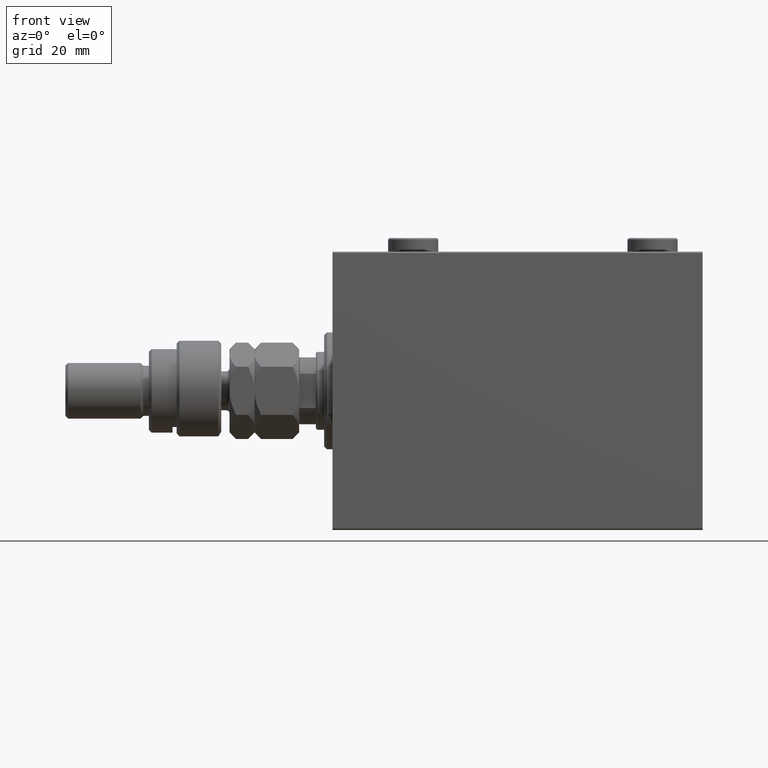
[diagram: clean part render]
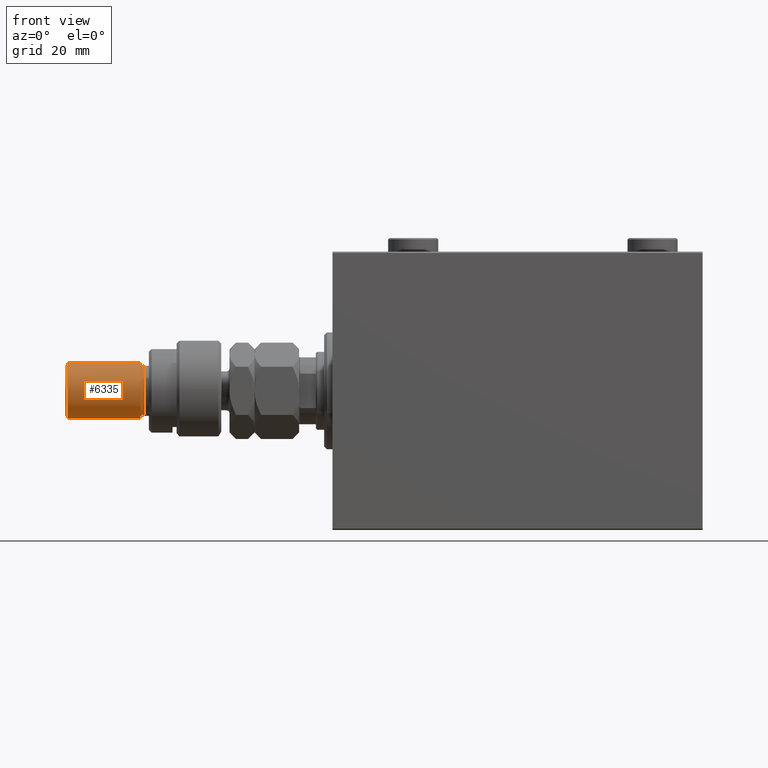
[diagram: same view with one face highlighted and labeled with its STEP entity id]
A machine part, front view. The second image highlights one B-rep face of the part: STEP entity #6335.
In plain terms, the highlighted cylindrical surface (edge-blend (fillet) strip) has radius 10 mm, axis along (1, -0, -0).
Its self-contained STEP definition (entity closure, byte-faithful):
#2035 = DIRECTION ( 'NONE',  ( -0.000000000000000000, -0.000000000000000000, -1.000000000000000000 ) ) ;
#6237 = VERTEX_POINT ( 'NONE', #22292 ) ;
#6335 = ADVANCED_FACE ( 'NONE', ( #38337 ), #24444, .T. ) ;
#10984 = CIRCLE ( 'NONE', #31192, 10.00000000000000000 ) ;
#14657 = EDGE_LOOP ( 'NONE', ( #21568, #43747, #32508, #21585 ) ) ;
#15089 = EDGE_CURVE ( 'NONE', #25404, #6237, #10984, .T. ) ;
#16908 = DIRECTION ( 'NONE',  ( -1.000000000000000000, 0.000000000000000000, 0.000000000000000000 ) ) ;
#19206 = CARTESIAN_POINT ( 'NONE',  ( -10.00000000000000000, 0.000000000000000000, 29.00000000000000711 ) ) ;
#21568 = ORIENTED_EDGE ( 'NONE', *, *, #35191, .F. ) ;
#21585 = ORIENTED_EDGE ( 'NONE', *, *, #15089, .T. ) ;
#22292 = CARTESIAN_POINT ( 'NONE',  ( 10.00000000000000000, 1.224646799147353256E-15, 29.00000000000000711 ) ) ;
#24444 = CYLINDRICAL_SURFACE ( 'NONE', #34782, 10.00000000000000000 ) ;
#25357 = CARTESIAN_POINT ( 'NONE',  ( -10.00000000000000000, 0.000000000000000000, 54.99999999999998579 ) ) ;
#25377 = CARTESIAN_POINT ( 'NONE',  ( 0.000000000000000000, 0.000000000000000000, 54.99999999999998579 ) ) ;
#25404 = VERTEX_POINT ( 'NONE', #19206 ) ;
#26102 = DIRECTION ( 'NONE',  ( 1.000000000000000000, 0.000000000000000000, 0.000000000000000000 ) ) ;
#26649 = DIRECTION ( 'NONE',  ( 1.000000000000000000, 0.000000000000000000, 0.000000000000000000 ) ) ;
#26732 = DIRECTION ( 'NONE',  ( -0.000000000000000000, -0.000000000000000000, -1.000000000000000000 ) ) ;
#26934 = EDGE_CURVE ( 'NONE', #46810, #36158, #39218, .T. ) ;
#29266 = DIRECTION ( 'NONE',  ( 0.000000000000000000, 0.000000000000000000, -1.000000000000000000 ) ) ;
#29530 = EDGE_CURVE ( 'NONE', #36158, #25404, #32741, .T. ) ;
#30175 = CARTESIAN_POINT ( 'NONE',  ( 10.00000000000000000, 1.224646799147353256E-15, 54.99999999999998579 ) ) ;
#30652 = AXIS2_PLACEMENT_3D ( 'NONE', #25377, #29266, #26102 ) ;
#31192 = AXIS2_PLACEMENT_3D ( 'NONE', #33952, #44252, #26649 ) ;
#32492 = DIRECTION ( 'NONE',  ( -0.000000000000000000, -0.000000000000000000, -1.000000000000000000 ) ) ;
#32508 = ORIENTED_EDGE ( 'NONE', *, *, #29530, .T. ) ;
#32741 = LINE ( 'NONE', #43938, #47854 ) ;
#33952 = CARTESIAN_POINT ( 'NONE',  ( 0.000000000000000000, 0.000000000000000000, 29.00000000000000711 ) ) ;
#34027 = VECTOR ( 'NONE', #26732, 1000.000000000000000 ) ;
#34782 = AXIS2_PLACEMENT_3D ( 'NONE', #46376, #2035, #16908 ) ;
#35191 = EDGE_CURVE ( 'NONE', #46810, #6237, #45003, .T. ) ;
#36158 = VERTEX_POINT ( 'NONE', #25357 ) ;
#38337 = FACE_OUTER_BOUND ( 'NONE', #14657, .T. ) ;
#39218 = CIRCLE ( 'NONE', #30652, 10.00000000000000000 ) ;
#43747 = ORIENTED_EDGE ( 'NONE', *, *, #26934, .T. ) ;
#43938 = CARTESIAN_POINT ( 'NONE',  ( -10.00000000000000000, 0.000000000000000000, 56.00000000000000711 ) ) ;
#44252 = DIRECTION ( 'NONE',  ( -0.000000000000000000, -0.000000000000000000, 1.000000000000000000 ) ) ;
#45003 = LINE ( 'NONE', #45246, #34027 ) ;
#45246 = CARTESIAN_POINT ( 'NONE',  ( 10.00000000000000000, 1.224646799147353256E-15, 56.00000000000000711 ) ) ;
#46376 = CARTESIAN_POINT ( 'NONE',  ( 0.000000000000000000, 0.000000000000000000, 56.00000000000000711 ) ) ;
#46810 = VERTEX_POINT ( 'NONE', #30175 ) ;
#47854 = VECTOR ( 'NONE', #32492, 1000.000000000000000 ) ;